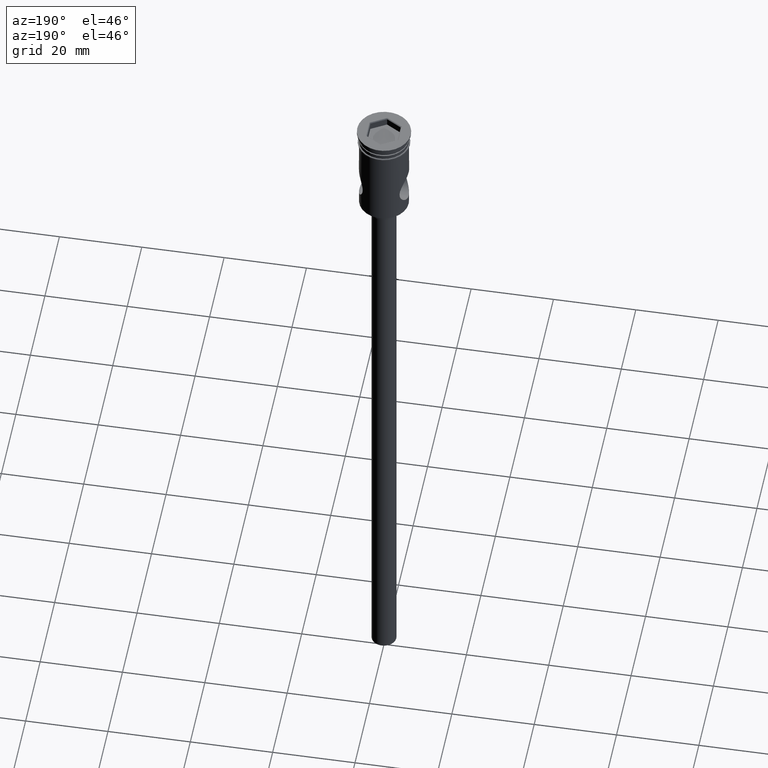
[diagram: clean part render]
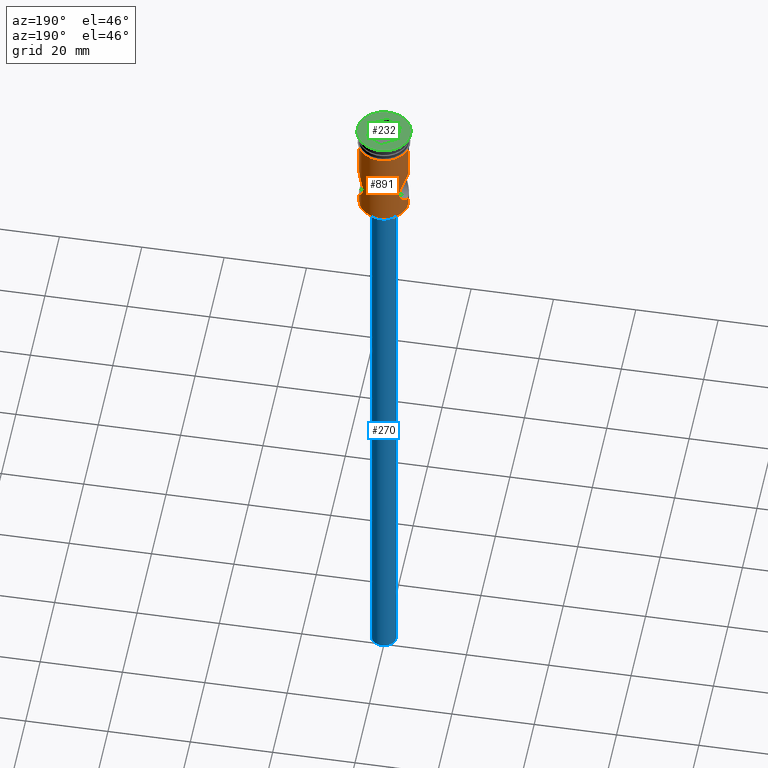
[diagram: same view with three faces highlighted in distinct colors, each labeled with its STEP entity id]
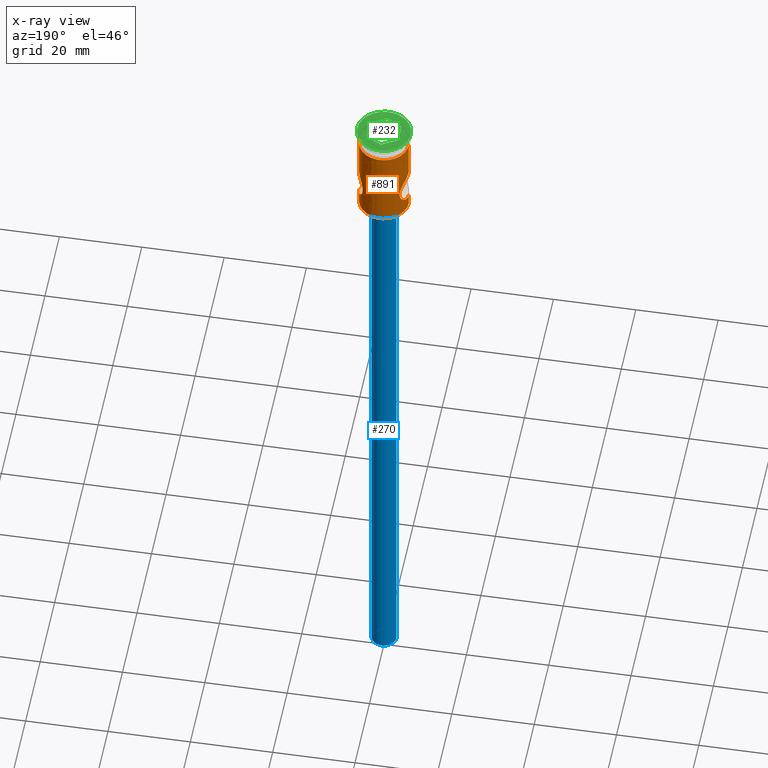
[diagram: x-ray of the same camera — body ghosted, the three highlighted faces saturated]
A machine part, auxiliary view with three faces highlighted in distinct colors.
The next image is the same camera in x-ray (body ghosted, the three faces saturated) — at least one of them is partly hidden behind the body in this view.
Their STEP definitions:

[orange] entity #891 — the highlighted cylindrical surface (edge-blend (fillet) strip) has radius 6 mm, axis along (-0, -0, 1).
#3 = CARTESIAN_POINT ( 'NONE',  ( 4.904334778770656378, 3.460699021627383409, -14.97811247933654322 ) ) ;
#12 = CARTESIAN_POINT ( 'NONE',  ( 5.999999999999996447, 0.2736934833754733898, -21.00000000000001066 ) ) ;
#14 = CARTESIAN_POINT ( 'NONE',  ( -5.094941177298608181, 3.173493986384487542, -19.44836001449217733 ) ) ;
#20 = CARTESIAN_POINT ( 'NONE',  ( -5.910224399078535029, 1.067455424808948061, -20.86424616908553276 ) ) ;
#24 = CIRCLE ( 'NONE', #236, 5.999999999999997335 ) ;
#30 = LINE ( 'NONE', #244, #1410 ) ;
#35 = CARTESIAN_POINT ( 'NONE',  ( -4.497954016143988376, 3.971583117973677801, -17.54574033674491318 ) ) ;
#78 = VECTOR ( 'NONE', #1246, 1000.000000000000000 ) ;
#86 = VERTEX_POINT ( 'NONE', #1066 ) ;
#107 = CARTESIAN_POINT ( 'NONE',  ( 4.591041808995887763, 3.863597314276563388, -18.06934695620068965 ) ) ;
#131 = CARTESIAN_POINT ( 'NONE',  ( -4.659573210257435427, 3.780337466250410561, -15.68607491293214729 ) ) ;
#137 = CARTESIAN_POINT ( 'NONE',  ( -4.496976719000948641, 3.972684566356397440, -16.46183091757618655 ) ) ;
#142 = CARTESIAN_POINT ( 'NONE',  ( -5.478456530086702081, 2.457412205291201968, -20.16652278763330486 ) ) ;
#148 = CIRCLE ( 'NONE', #511, 6.000000000000000000 ) ;
#151 = CARTESIAN_POINT ( 'NONE',  ( -5.092437400807711789, 3.177449308448081489, -14.55690956341038245 ) ) ;
#166 = CARTESIAN_POINT ( 'NONE',  ( 0.000000000000000000, 0.000000000000000000, -23.80000000000000782 ) ) ;
#189 = EDGE_CURVE ( 'NONE', #552, #86, #24, .T. ) ;
#197 = DIRECTION ( 'NONE',  ( -0.000000000000000000, -0.000000000000000000, 1.000000000000000000 ) ) ;
#198 = ORIENTED_EDGE ( 'NONE', *, *, #1374, .F. ) ;
#200 = EDGE_CURVE ( 'NONE', #214, #902, #1324, .T. ) ;
#213 = CARTESIAN_POINT ( 'NONE',  ( 4.813287987224462938, 3.584502662014734664, -15.20585560854699558 ) ) ;
#214 = VERTEX_POINT ( 'NONE', #1097 ) ;
#222 = CARTESIAN_POINT ( 'NONE',  ( -6.000000000000000000, 7.347880794884119736E-16, -3.799999999999998490 ) ) ;
#225 = CARTESIAN_POINT ( 'NONE',  ( 5.191849950367996236, 3.014242200430726992, -19.64164800058794214 ) ) ;
#228 = CARTESIAN_POINT ( 'NONE',  ( -5.999999999999997335, 0.000000000000000000, -21.00000000000000000 ) ) ;
#231 = CARTESIAN_POINT ( 'NONE',  ( 5.999999999999997335, 1.032865049536733409E-19, -13.00000000000000178 ) ) ;
#233 = DIRECTION ( 'NONE',  ( -0.000000000000000000, -0.000000000000000000, 1.000000000000000000 ) ) ;
#234 = DIRECTION ( 'NONE',  ( -0.000000000000000000, -0.000000000000000000, 1.000000000000000000 ) ) ;
#236 = AXIS2_PLACEMENT_3D ( 'NONE', #166, #197, #1330 ) ;
#238 = CARTESIAN_POINT ( 'NONE',  ( 4.815777407978871771, 3.581151401136684953, -18.80060207983888887 ) ) ;
#242 = CARTESIAN_POINT ( 'NONE',  ( -5.999999999999999112, 0.2733318867810531350, -21.00000000000000000 ) ) ;
#244 = CARTESIAN_POINT ( 'NONE',  ( 5.999999999999997335, 0.000000000000000000, 0.000000000000000000 ) ) ;
#264 = VECTOR ( 'NONE', #233, 1000.000000000000000 ) ;
#313 = B_SPLINE_CURVE_WITH_KNOTS ( 'NONE', 3,
 ( #999, #326, #432, #1243, #1135, #573, #1142, #1020, #809, #357, #151, #595, #364, #817, #131, #1276, #471, #137, #1061, #1148, #35, #1372, #351, #1040, #813, #14, #1033, #1170, #142, #608, #1260, #729, #20, #483, #242, #228 ),
 .UNSPECIFIED., .F., .F.,
 ( 4, 2, 2, 2, 2, 2, 2, 2, 2, 2, 2, 2, 2, 2, 2, 2, 2, 4 ),
 ( 0.01292789089967558668, 0.01373481658167571492, 0.01454174226367584317, 0.01534866794567596969, 0.01615559362767609794, 0.01696251930967622445, 0.01776944499167635444, 0.01817290783267641943, 0.01857637067367648442, 0.01938329635567661441, 0.02019022203767674092, 0.02099714771967687091, 0.02180407340167700089, 0.02261099908367712741, 0.02341792476567725739, 0.02422485044767738738, 0.02503177612967751736, 0.02583870181167764735 ),
 .UNSPECIFIED. ) ;
#326 = CARTESIAN_POINT ( 'NONE',  ( -5.999999999999998224, 0.2693226933892789443, -13.00000000000000178 ) ) ;
#328 = ORIENTED_EDGE ( 'NONE', *, *, #945, .F. ) ;
#331 = CARTESIAN_POINT ( 'NONE',  ( 5.476259375248750061, 2.462490082215233578, -20.16276605017705492 ) ) ;
#333 = B_SPLINE_CURVE_WITH_KNOTS ( 'NONE', 3,
 ( #1270, #12, #1024, #447, #1131, #815, #1476, #331, #1462, #225, #461, #1039, #238, #714, #107, #454, #1470, #1161, #915, #1368, #908, #1356, #1264, #213, #3, #361, #470, #582, #1140, #685, #922, #570, #349, #1380, #562, #1361, #339, #231 ),
 .UNSPECIFIED., .F., .F.,
 ( 4, 2, 2, 2, 2, 2, 2, 2, 2, 2, 2, 2, 2, 2, 2, 2, 2, 2, 4 ),
 ( 0.000000000000000000, 0.0008079931812297244925, 0.001615986362459448551, 0.002423979543689172393, 0.003231972724918896669, 0.004039965906148620944, 0.004847959087378344786, 0.005655952268608070363, 0.006059948859222932284, 0.006463945449837794205, 0.007271938631067518047, 0.008079931812297241889, 0.008887924993526967465, 0.009695918174756691307, 0.01050391135598641688, 0.01131190453721614073, 0.01211989771844586630, 0.01252389430906072736, 0.01292789089967558841 ),
 .UNSPECIFIED. ) ;
#339 = CARTESIAN_POINT ( 'NONE',  ( 5.999999999999999112, 0.1348394930680404946, -13.00000000000000355 ) ) ;
#349 = CARTESIAN_POINT ( 'NONE',  ( 5.909734172871756286, 1.070628588321906216, -13.13649990372544885 ) ) ;
#351 = CARTESIAN_POINT ( 'NONE',  ( -4.658564655011904421, 3.783396392401493724, -18.32386562586674827 ) ) ;
#357 = CARTESIAN_POINT ( 'NONE',  ( -5.189877563605834965, 3.017637752822129205, -14.36220871751616635 ) ) ;
#361 = CARTESIAN_POINT ( 'NONE',  ( 5.092532074683503218, 3.177271535275488112, -14.55676189133447451 ) ) ;
#364 = CARTESIAN_POINT ( 'NONE',  ( -4.812980838828971208, 3.584886833645904769, -15.20686804412651760 ) ) ;
#432 = CARTESIAN_POINT ( 'NONE',  ( -5.981295349059706723, 0.5428679769166538938, -13.02790298971888028 ) ) ;
#447 = CARTESIAN_POINT ( 'NONE',  ( 5.910558363407836246, 1.065472474882099840, -20.86475527808674713 ) ) ;
#452 = CARTESIAN_POINT ( 'NONE',  ( 5.999999999999997335, 0.000000000000000000, -21.00000000000000355 ) ) ;
#454 = CARTESIAN_POINT ( 'NONE',  ( 4.521451790501867407, 3.944329598407792847, -17.67822252913732228 ) ) ;
#461 = CARTESIAN_POINT ( 'NONE',  ( 5.092719808373194823, 3.176950723007529120, -19.44358897106424067 ) ) ;
#470 = CARTESIAN_POINT ( 'NONE',  ( 5.191140967328530031, 3.015547360259486442, -14.35969034782403853 ) ) ;
#471 = CARTESIAN_POINT ( 'NONE',  ( -4.566410052139553422, 3.892191516930989970, -16.06790164049536074 ) ) ;
#483 = CARTESIAN_POINT ( 'NONE',  ( -5.981315622377779029, 0.5422886287917135784, -20.97212570072114346 ) ) ;
#491 = VERTEX_POINT ( 'NONE', #1278 ) ;
#511 = AXIS2_PLACEMENT_3D ( 'NONE', #1310, #1444, #1093 ) ;
#515 = EDGE_LOOP ( 'NONE', ( #1234, #1419, #328, #1298, #777, #198, #1452, #1458 ) ) ;
#522 = DIRECTION ( 'NONE',  ( -0.000000000000000000, -0.000000000000000000, 1.000000000000000000 ) ) ;
#533 = CYLINDRICAL_SURFACE ( 'NONE', #1439, 5.999999999999997335 ) ;
#552 = VERTEX_POINT ( 'NONE', #931 ) ;
#558 = VERTEX_POINT ( 'NONE', #1284 ) ;
#562 = CARTESIAN_POINT ( 'NONE',  ( 5.977293684551372444, 0.5386543696670914594, -13.03412758888618939 ) ) ;
#564 = DIRECTION ( 'NONE',  ( 1.000000000000000000, 0.000000000000000000, 0.000000000000000000 ) ) ;
#570 = CARTESIAN_POINT ( 'NONE',  ( 5.857601659980624653, 1.323462767520508176, -13.21610827440704128 ) ) ;
#573 = CARTESIAN_POINT ( 'NONE',  ( -5.726042320256659046, 1.810021776766353563, -13.42313354859388497 ) ) ;
#582 = CARTESIAN_POINT ( 'NONE',  ( 5.383657517074641241, 2.656633614838565194, -13.99882376761189029 ) ) ;
#595 = CARTESIAN_POINT ( 'NONE',  ( -4.903670365680999232, 3.461664301119384834, -14.97966456857567685 ) ) ;
#608 = CARTESIAN_POINT ( 'NONE',  ( -5.649709804834211369, 2.033012498713174576, -20.45435978024745438 ) ) ;
#640 = EDGE_CURVE ( 'NONE', #552, #1394, #30, .T. ) ;
#646 = FACE_OUTER_BOUND ( 'NONE', #515, .T. ) ;
#683 = CARTESIAN_POINT ( 'NONE',  ( 5.999999999999997335, 0.000000000000000000, 0.000000000000000000 ) ) ;
#685 = CARTESIAN_POINT ( 'NONE',  ( 5.647456945233584769, 2.039167636317595456, -13.54932708310013645 ) ) ;
#714 = CARTESIAN_POINT ( 'NONE',  ( 4.658800709564930642, 3.783111596241941488, -18.32471878455886838 ) ) ;
#729 = CARTESIAN_POINT ( 'NONE',  ( -5.856852607584092318, 1.326405963621358985, -20.78272040109924745 ) ) ;
#749 = CARTESIAN_POINT ( 'NONE',  ( 6.000000000000000000, 0.000000000000000000, -3.799999999999998490 ) ) ;
#761 = CARTESIAN_POINT ( 'NONE',  ( -5.999999999999997335, 7.347880794884116778E-16, 0.000000000000000000 ) ) ;
#777 = ORIENTED_EDGE ( 'NONE', *, *, #816, .F. ) ;
#809 = CARTESIAN_POINT ( 'NONE',  ( -5.381440153112927227, 2.661027735845785891, -14.00283269631731109 ) ) ;
#813 = CARTESIAN_POINT ( 'NONE',  ( -4.905092851350609351, 3.459704293921746832, -19.02385203036241279 ) ) ;
#815 = CARTESIAN_POINT ( 'NONE',  ( 5.726993910597675708, 1.806673378235915450, -20.57837121075087694 ) ) ;
#816 = EDGE_CURVE ( 'NONE', #848, #902, #148, .T. ) ;
#817 = CARTESIAN_POINT ( 'NONE',  ( -4.695721265758814766, 3.735538961856250673, -15.56388279734573032 ) ) ;
#848 = VERTEX_POINT ( 'NONE', #749 ) ;
#865 = VECTOR ( 'NONE', #522, 1000.000000000000000 ) ;
#891 = ADVANCED_FACE ( 'NONE', ( #646 ), #533, .T. ) ;
#902 = VERTEX_POINT ( 'NONE', #222 ) ;
#908 = CARTESIAN_POINT ( 'NONE',  ( 4.496571596818668581, 3.973146032982571185, -16.46466415118837645 ) ) ;
#915 = CARTESIAN_POINT ( 'NONE',  ( 4.472242783135714106, 3.999880562432159614, -17.13916142668632858 ) ) ;
#922 = CARTESIAN_POINT ( 'NONE',  ( 5.726539468168462044, 1.808257897405588066, -13.42234802356430556 ) ) ;
#931 = CARTESIAN_POINT ( 'NONE',  ( 5.999999999999997335, 0.000000000000000000, -23.80000000000000782 ) ) ;
#945 = EDGE_CURVE ( 'NONE', #214, #491, #313, .T. ) ;
#980 = EDGE_CURVE ( 'NONE', #86, #491, #1052, .T. ) ;
#982 = CARTESIAN_POINT ( 'NONE',  ( 0.000000000000000000, 0.000000000000000000, 0.000000000000000000 ) ) ;
#999 = CARTESIAN_POINT ( 'NONE',  ( -5.999999999999997335, 7.346847929928983029E-16, -13.00000000000000178 ) ) ;
#1020 = CARTESIAN_POINT ( 'NONE',  ( -5.476104105474132844, 2.462661959051749783, -13.83753213007002181 ) ) ;
#1024 = CARTESIAN_POINT ( 'NONE',  ( 5.981377723958400061, 0.5413430384848008092, -20.97221760090189591 ) ) ;
#1033 = CARTESIAN_POINT ( 'NONE',  ( -5.192588128681414616, 3.012973207551337129, -19.64309212195293952 ) ) ;
#1039 = CARTESIAN_POINT ( 'NONE',  ( 4.904969006695426792, 3.459781783056854465, -19.02337662573056321 ) ) ;
#1040 = CARTESIAN_POINT ( 'NONE',  ( -4.815345988703960245, 3.581725270876521705, -18.79943117160748400 ) ) ;
#1052 = LINE ( 'NONE', #1397, #264 ) ;
#1061 = CARTESIAN_POINT ( 'NONE',  ( -4.471969905858020233, 4.000185648662160531, -16.72948623710962224 ) ) ;
#1066 = CARTESIAN_POINT ( 'NONE',  ( -5.999999999999997335, 7.347880794884116778E-16, -23.80000000000000782 ) ) ;
#1069 = EDGE_CURVE ( 'NONE', #1394, #558, #333, .T. ) ;
#1093 = DIRECTION ( 'NONE',  ( 1.000000000000000000, 0.000000000000000000, 0.000000000000000000 ) ) ;
#1097 = CARTESIAN_POINT ( 'NONE',  ( -5.999999999999997335, 7.346847929928983029E-16, -13.00000000000000178 ) ) ;
#1131 = CARTESIAN_POINT ( 'NONE',  ( 5.857462785930378502, 1.323879775164644279, -20.78366906037870621 ) ) ;
#1135 = CARTESIAN_POINT ( 'NONE',  ( -5.857856019569840811, 1.322596816769210371, -13.21570480751897314 ) ) ;
#1140 = CARTESIAN_POINT ( 'NONE',  ( 5.476434227958205447, 2.461837270032280145, -13.83697842493742947 ) ) ;
#1142 = CARTESIAN_POINT ( 'NONE',  ( -5.647852088979878005, 2.038182248857265844, -13.54866401616081362 ) ) ;
#1148 = CARTESIAN_POINT ( 'NONE',  ( -4.472303672293369559, 3.999812486286544289, -17.27597643780235259 ) ) ;
#1161 = CARTESIAN_POINT ( 'NONE',  ( 4.478683235531862650, 3.992711086781057350, -17.27669624262845005 ) ) ;
#1170 = CARTESIAN_POINT ( 'NONE',  ( -5.383857059222176389, 2.656136703825481504, -20.00147985586160004 ) ) ;
#1234 = ORIENTED_EDGE ( 'NONE', *, *, #189, .T. ) ;
#1243 = CARTESIAN_POINT ( 'NONE',  ( -5.909894408226808338, 1.069461442341117507, -13.13625666965422134 ) ) ;
#1246 = DIRECTION ( 'NONE',  ( -0.000000000000000000, -0.000000000000000000, 1.000000000000000000 ) ) ;
#1260 = CARTESIAN_POINT ( 'NONE',  ( -5.726721313513245981, 1.807412029573770118, -20.57793071042114619 ) ) ;
#1264 = CARTESIAN_POINT ( 'NONE',  ( 4.655957912614350214, 3.786615440986035974, -15.68502588106870199 ) ) ;
#1270 = CARTESIAN_POINT ( 'NONE',  ( 5.999999999999997335, 0.000000000000000000, -21.00000000000000355 ) ) ;
#1276 = CARTESIAN_POINT ( 'NONE',  ( -4.594981970458708709, 3.858589710197853240, -15.93762721160692664 ) ) ;
#1278 = CARTESIAN_POINT ( 'NONE',  ( -5.999999999999997335, 0.000000000000000000, -21.00000000000000000 ) ) ;
#1284 = CARTESIAN_POINT ( 'NONE',  ( 5.999999999999997335, 1.032865049536733409E-19, -13.00000000000000178 ) ) ;
#1298 = ORIENTED_EDGE ( 'NONE', *, *, #200, .T. ) ;
#1310 = CARTESIAN_POINT ( 'NONE',  ( 0.000000000000000000, 0.000000000000000000, -3.799999999999998490 ) ) ;
#1324 = LINE ( 'NONE', #761, #865 ) ;
#1330 = DIRECTION ( 'NONE',  ( -1.000000000000000000, 0.000000000000000000, 0.000000000000000000 ) ) ;
#1356 = CARTESIAN_POINT ( 'NONE',  ( 4.589371484154252556, 3.865580797907775423, -15.93709879797100193 ) ) ;
#1361 = CARTESIAN_POINT ( 'NONE',  ( 5.995459719443724467, 0.2695386314927124549, -13.00680060135633376 ) ) ;
#1368 = CARTESIAN_POINT ( 'NONE',  ( 4.471926352484667966, 4.000234342895624629, -16.73210661165612123 ) ) ;
#1372 = CARTESIAN_POINT ( 'NONE',  ( -4.590872927876621823, 3.863799755992654905, -18.06881075205813403 ) ) ;
#1374 = EDGE_CURVE ( 'NONE', #558, #848, #1378, .T. ) ;
#1378 = LINE ( 'NONE', #683, #78 ) ;
#1380 = CARTESIAN_POINT ( 'NONE',  ( 5.963516332756118032, 0.6739983983561916858, -13.05488329690675364 ) ) ;
#1394 = VERTEX_POINT ( 'NONE', #452 ) ;
#1397 = CARTESIAN_POINT ( 'NONE',  ( -5.999999999999997335, 7.347880794884116778E-16, 0.000000000000000000 ) ) ;
#1410 = VECTOR ( 'NONE', #234, 1000.000000000000000 ) ;
#1419 = ORIENTED_EDGE ( 'NONE', *, *, #980, .T. ) ;
#1435 = DIRECTION ( 'NONE',  ( -0.000000000000000000, -0.000000000000000000, 1.000000000000000000 ) ) ;
#1439 = AXIS2_PLACEMENT_3D ( 'NONE', #982, #1435, #564 ) ;
#1444 = DIRECTION ( 'NONE',  ( -0.000000000000000000, -0.000000000000000000, 1.000000000000000000 ) ) ;
#1452 = ORIENTED_EDGE ( 'NONE', *, *, #1069, .F. ) ;
#1458 = ORIENTED_EDGE ( 'NONE', *, *, #640, .F. ) ;
#1462 = CARTESIAN_POINT ( 'NONE',  ( 5.383168773068585544, 2.657528158016941866, -20.00025070472699440 ) ) ;
#1470 = CARTESIAN_POINT ( 'NONE',  ( 4.503329929757906136, 3.964891535778145570, -17.54583673630848750 ) ) ;
#1476 = CARTESIAN_POINT ( 'NONE',  ( 5.649252793255032934, 2.034506580944977827, -20.45365450866940193 ) ) ;

[blue] entity #270 — the highlighted cylindrical surface (edge-blend (fillet) strip) has radius 3 mm, axis along (-0, -0, 1).
#41 = EDGE_LOOP ( 'NONE', ( #1325, #362, #628, #923 ) ) ;
#46 = DIRECTION ( 'NONE',  ( 0.000000000000000000, 0.000000000000000000, -1.000000000000000000 ) ) ;
#61 = CARTESIAN_POINT ( 'NONE',  ( -3.000000000000000444, 3.673940397442060361E-16, -174.0000000000000000 ) ) ;
#114 = CARTESIAN_POINT ( 'NONE',  ( 0.000000000000000000, 0.000000000000000000, -174.0000000000000000 ) ) ;
#204 = DIRECTION ( 'NONE',  ( 1.000000000000000000, 0.000000000000000000, 0.000000000000000000 ) ) ;
#237 = DIRECTION ( 'NONE',  ( -0.000000000000000000, -0.000000000000000000, 1.000000000000000000 ) ) ;
#258 = CARTESIAN_POINT ( 'NONE',  ( 0.000000000000000000, 0.000000000000000000, -174.0000000000000000 ) ) ;
#270 = ADVANCED_FACE ( 'NONE', ( #276 ), #1200, .T. ) ;
#276 = FACE_OUTER_BOUND ( 'NONE', #41, .T. ) ;
#362 = ORIENTED_EDGE ( 'NONE', *, *, #681, .T. ) ;
#408 = VERTEX_POINT ( 'NONE', #784 ) ;
#421 = VERTEX_POINT ( 'NONE', #475 ) ;
#475 = CARTESIAN_POINT ( 'NONE',  ( -3.000000000000000444, 3.673940397442060361E-16, -27.00000000000000000 ) ) ;
#484 = LINE ( 'NONE', #617, #689 ) ;
#487 = CARTESIAN_POINT ( 'NONE',  ( 3.000000000000000444, 0.000000000000000000, -174.0000000000000000 ) ) ;
#494 = LINE ( 'NONE', #487, #1459 ) ;
#506 = EDGE_CURVE ( 'NONE', #421, #1334, #1133, .T. ) ;
#551 = EDGE_CURVE ( 'NONE', #408, #1334, #494, .T. ) ;
#576 = DIRECTION ( 'NONE',  ( -0.000000000000000000, -0.000000000000000000, 1.000000000000000000 ) ) ;
#588 = AXIS2_PLACEMENT_3D ( 'NONE', #1299, #46, #928 ) ;
#617 = CARTESIAN_POINT ( 'NONE',  ( -3.000000000000000444, 3.673940397442060361E-16, -174.0000000000000000 ) ) ;
#628 = ORIENTED_EDGE ( 'NONE', *, *, #506, .T. ) ;
#630 = EDGE_CURVE ( 'NONE', #877, #408, #1272, .T. ) ;
#681 = EDGE_CURVE ( 'NONE', #877, #421, #484, .T. ) ;
#689 = VECTOR ( 'NONE', #1062, 1000.000000000000000 ) ;
#784 = CARTESIAN_POINT ( 'NONE',  ( 3.000000000000000444, 0.000000000000000000, -174.0000000000000000 ) ) ;
#877 = VERTEX_POINT ( 'NONE', #61 ) ;
#923 = ORIENTED_EDGE ( 'NONE', *, *, #551, .F. ) ;
#928 = DIRECTION ( 'NONE',  ( -1.000000000000000000, 0.000000000000000000, 0.000000000000000000 ) ) ;
#1062 = DIRECTION ( 'NONE',  ( -0.000000000000000000, -0.000000000000000000, 1.000000000000000000 ) ) ;
#1133 = CIRCLE ( 'NONE', #588, 3.000000000000000444 ) ;
#1154 = AXIS2_PLACEMENT_3D ( 'NONE', #258, #1171, #1180 ) ;
#1171 = DIRECTION ( 'NONE',  ( 0.000000000000000000, 0.000000000000000000, -1.000000000000000000 ) ) ;
#1180 = DIRECTION ( 'NONE',  ( -1.000000000000000000, 0.000000000000000000, 0.000000000000000000 ) ) ;
#1200 = CYLINDRICAL_SURFACE ( 'NONE', #1293, 3.000000000000000444 ) ;
#1272 = CIRCLE ( 'NONE', #1154, 3.000000000000000444 ) ;
#1293 = AXIS2_PLACEMENT_3D ( 'NONE', #114, #576, #204 ) ;
#1299 = CARTESIAN_POINT ( 'NONE',  ( 0.000000000000000000, 0.000000000000000000, -27.00000000000000000 ) ) ;
#1325 = ORIENTED_EDGE ( 'NONE', *, *, #630, .F. ) ;
#1334 = VERTEX_POINT ( 'NONE', #1354 ) ;
#1354 = CARTESIAN_POINT ( 'NONE',  ( 3.000000000000000444, 0.000000000000000000, -27.00000000000000000 ) ) ;
#1459 = VECTOR ( 'NONE', #237, 1000.000000000000000 ) ;

[green] entity #232 — the highlighted planar face has unit normal (0, -0, 1).
#40 = CARTESIAN_POINT ( 'NONE',  ( 0.000000000000000000, 0.000000000000000000, 0.000000000000000000 ) ) ;
#71 = DIRECTION ( 'NONE',  ( 0.000000000000000000, -0.000000000000000000, 1.000000000000000000 ) ) ;
#90 = VERTEX_POINT ( 'NONE', #262 ) ;
#149 = CIRCLE ( 'NONE', #1156, 6.500000000000000000 ) ;
#180 = VERTEX_POINT ( 'NONE', #301 ) ;
#195 = DIRECTION ( 'NONE',  ( -0.8660254037844387076, 0.4999999999999998890, 0.000000000000000000 ) ) ;
#215 = ORIENTED_EDGE ( 'NONE', *, *, #794, .T. ) ;
#229 = LINE ( 'NONE', #1256, #565 ) ;
#232 = ADVANCED_FACE ( 'NONE', ( #883, #413 ), #867, .T. ) ;
#262 = CARTESIAN_POINT ( 'NONE',  ( 3.899999999999993250, -2.251666049839539330, 0.000000000000000000 ) ) ;
#293 = CARTESIAN_POINT ( 'NONE',  ( 0.000000000000000000, 0.000000000000000000, 0.000000000000000000 ) ) ;
#301 = CARTESIAN_POINT ( 'NONE',  ( 6.500000000000000000, 0.000000000000000000, 0.000000000000000000 ) ) ;
#314 = VECTOR ( 'NONE', #976, 1000.000000000000000 ) ;
#353 = DIRECTION ( 'NONE',  ( -2.030154863158322842E-16, -1.000000000000000000, 0.000000000000000000 ) ) ;
#354 = DIRECTION ( 'NONE',  ( 0.8660254037844387076, -0.4999999999999998335, 0.000000000000000000 ) ) ;
#355 = EDGE_CURVE ( 'NONE', #556, #90, #1257, .T. ) ;
#389 = DIRECTION ( 'NONE',  ( -0.8660254037844388186, -0.4999999999999997780, 0.000000000000000000 ) ) ;
#413 = FACE_OUTER_BOUND ( 'NONE', #507, .T. ) ;
#434 = CARTESIAN_POINT ( 'NONE',  ( -3.799999999999998046, -2.309401076758498039, 0.000000000000000000 ) ) ;
#446 = CARTESIAN_POINT ( 'NONE',  ( 3.899999999999993250, -2.136195996001616138, 0.000000000000000000 ) ) ;
#480 = EDGE_CURVE ( 'NONE', #90, #803, #950, .T. ) ;
#507 = EDGE_LOOP ( 'NONE', ( #632, #602 ) ) ;
#513 = VECTOR ( 'NONE', #195, 1000.000000000000000 ) ;
#517 = CARTESIAN_POINT ( 'NONE',  ( 5.124951389194159977E-16, -4.503332099679074219, 0.000000000000000000 ) ) ;
#536 = LINE ( 'NONE', #434, #513 ) ;
#556 = VERTEX_POINT ( 'NONE', #713 ) ;
#565 = VECTOR ( 'NONE', #675, 1000.000000000000114 ) ;
#602 = ORIENTED_EDGE ( 'NONE', *, *, #1118, .T. ) ;
#611 = VECTOR ( 'NONE', #353, 1000.000000000000000 ) ;
#632 = ORIENTED_EDGE ( 'NONE', *, *, #1277, .T. ) ;
#653 = CARTESIAN_POINT ( 'NONE',  ( -3.899999999999994138, 2.136195996001614361, 0.000000000000000000 ) ) ;
#667 = CARTESIAN_POINT ( 'NONE',  ( -6.500000000000000000, 7.960204194457795477E-16, 0.000000000000000000 ) ) ;
#675 = DIRECTION ( 'NONE',  ( 0.8660254037844385966, 0.4999999999999999445, 0.000000000000000000 ) ) ;
#680 = EDGE_LOOP ( 'NONE', ( #751, #215, #886, #870, #944, #728 ) ) ;
#710 = VECTOR ( 'NONE', #389, 1000.000000000000114 ) ;
#713 = CARTESIAN_POINT ( 'NONE',  ( 3.899999999999994138, 2.251666049839536665, 0.000000000000000000 ) ) ;
#727 = DIRECTION ( 'NONE',  ( 1.000000000000000000, 0.000000000000000000, 0.000000000000000000 ) ) ;
#728 = ORIENTED_EDGE ( 'NONE', *, *, #480, .T. ) ;
#751 = ORIENTED_EDGE ( 'NONE', *, *, #1273, .T. ) ;
#776 = AXIS2_PLACEMENT_3D ( 'NONE', #293, #71, #1221 ) ;
#794 = EDGE_CURVE ( 'NONE', #1075, #1015, #992, .T. ) ;
#803 = VERTEX_POINT ( 'NONE', #517 ) ;
#835 = DIRECTION ( 'NONE',  ( -0.000000000000000000, -0.000000000000000000, 1.000000000000000000 ) ) ;
#867 = PLANE ( 'NONE',  #776 ) ;
#870 = ORIENTED_EDGE ( 'NONE', *, *, #1048, .T. ) ;
#883 = FACE_BOUND ( 'NONE', #680, .T. ) ;
#886 = ORIENTED_EDGE ( 'NONE', *, *, #1337, .T. ) ;
#900 = CARTESIAN_POINT ( 'NONE',  ( -3.899999999999994138, -2.251666049839537553, 0.000000000000000000 ) ) ;
#938 = CIRCLE ( 'NONE', #1274, 6.500000000000000000 ) ;
#944 = ORIENTED_EDGE ( 'NONE', *, *, #355, .T. ) ;
#950 = LINE ( 'NONE', #1072, #710 ) ;
#976 = DIRECTION ( 'NONE',  ( 0.000000000000000000, 1.000000000000000000, 0.000000000000000000 ) ) ;
#986 = CARTESIAN_POINT ( 'NONE',  ( 0.000000000000000000, 0.000000000000000000, 0.000000000000000000 ) ) ;
#992 = LINE ( 'NONE', #653, #314 ) ;
#995 = DIRECTION ( 'NONE',  ( -0.000000000000000000, -0.000000000000000000, 1.000000000000000000 ) ) ;
#1010 = LINE ( 'NONE', #1029, #1034 ) ;
#1015 = VERTEX_POINT ( 'NONE', #1287 ) ;
#1029 = CARTESIAN_POINT ( 'NONE',  ( 3.799999999999997602, 2.309401076758497595, 0.000000000000000000 ) ) ;
#1034 = VECTOR ( 'NONE', #354, 1000.000000000000000 ) ;
#1048 = EDGE_CURVE ( 'NONE', #1348, #556, #1010, .T. ) ;
#1072 = CARTESIAN_POINT ( 'NONE',  ( 0.09999999999999689693, -4.445597072760113733, 0.000000000000000000 ) ) ;
#1075 = VERTEX_POINT ( 'NONE', #900 ) ;
#1118 = EDGE_CURVE ( 'NONE', #1186, #180, #938, .T. ) ;
#1156 = AXIS2_PLACEMENT_3D ( 'NONE', #986, #995, #1448 ) ;
#1186 = VERTEX_POINT ( 'NONE', #667 ) ;
#1221 = DIRECTION ( 'NONE',  ( 1.000000000000000000, 0.000000000000000000, 0.000000000000000000 ) ) ;
#1239 = CARTESIAN_POINT ( 'NONE',  ( -1.088215527527321583E-15, 4.503332099679073330, 0.000000000000000000 ) ) ;
#1256 = CARTESIAN_POINT ( 'NONE',  ( -0.09999999999999756306, 4.445597072760112844, 0.000000000000000000 ) ) ;
#1257 = LINE ( 'NONE', #446, #611 ) ;
#1273 = EDGE_CURVE ( 'NONE', #803, #1075, #536, .T. ) ;
#1274 = AXIS2_PLACEMENT_3D ( 'NONE', #40, #835, #727 ) ;
#1277 = EDGE_CURVE ( 'NONE', #180, #1186, #149, .T. ) ;
#1287 = CARTESIAN_POINT ( 'NONE',  ( -3.899999999999994138, 2.251666049839537109, 0.000000000000000000 ) ) ;
#1337 = EDGE_CURVE ( 'NONE', #1015, #1348, #229, .T. ) ;
#1348 = VERTEX_POINT ( 'NONE', #1239 ) ;
#1448 = DIRECTION ( 'NONE',  ( 1.000000000000000000, 0.000000000000000000, 0.000000000000000000 ) ) ;